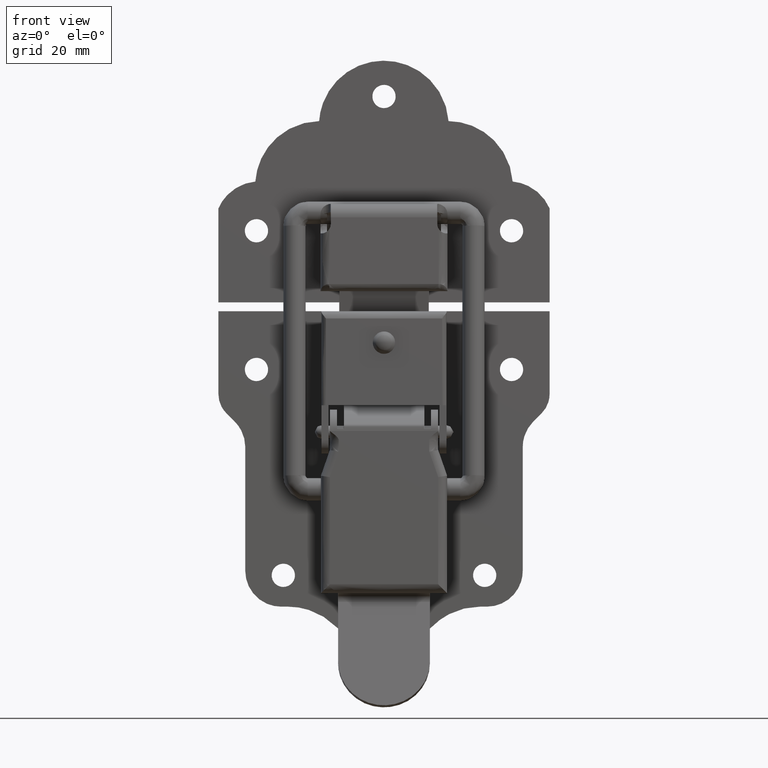
[diagram: clean part render]
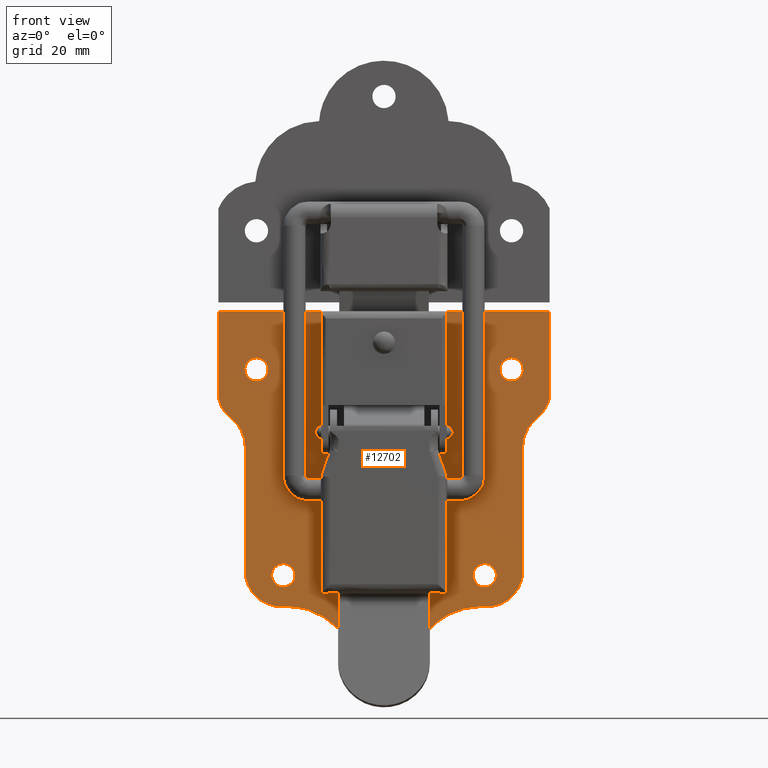
[diagram: same view with one face highlighted and labeled with its STEP entity id]
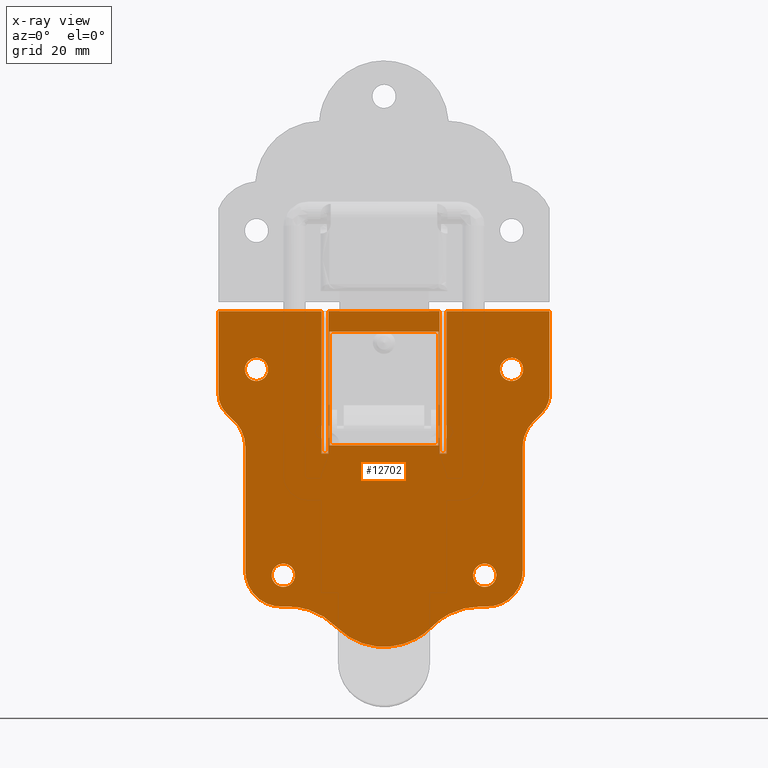
[diagram: x-ray of the same camera — body ghosted, the highlighted face saturated]
A machine part, front view. The second image highlights one B-rep face of the part: STEP entity #12702.
The next image is the same camera in x-ray: the body ghosted, the highlighted face saturated — about 0% of this face is hidden behind the body in this view.
In plain terms, the highlighted face is a freeform B-spline surface patch.
Its self-contained STEP definition (entity closure, byte-faithful):
#8712=CARTESIAN_POINT('',(28.500000000000000,10.900000000000119,16.600000000000001));
#8713=VERTEX_POINT('',#8712);
#8714=CARTESIAN_POINT('',(25.908014932304891,10.900000000000119,14.203993649032530));
#8715=VERTEX_POINT('',#8714);
#8716=CARTESIAN_POINT('',(28.500000000000000,10.900000000000119,16.600000000000001));
#8717=CARTESIAN_POINT('',(26.096584721949341,10.900000000000119,16.600000000000001));
#8718=CARTESIAN_POINT('',(25.908014932304898,10.900000000000123,14.203993649032526));
#8726=(BOUNDED_CURVE()B_SPLINE_CURVE(2,(#8716,#8717,#8718),.UNSPECIFIED.,.F.,.U.)B_SPLINE_CURVE_WITH_KNOTS((3,3),(0.0,0.236331300614231),.UNSPECIFIED.)CURVE()GEOMETRIC_REPRESENTATION_ITEM()RATIONAL_B_SPLINE_CURVE((1.0,0.723120658626913,0.969723356133133))REPRESENTATION_ITEM(''));
#8727=EDGE_CURVE('',#8713,#8715,#8726,.T.);
#8768=CARTESIAN_POINT('',(31.091985067695109,10.900000000000119,13.796006350967470));
#8769=VERTEX_POINT('',#8768);
#8775=CARTESIAN_POINT('',(31.091985067695106,10.900000000000119,13.796006350967474));
#8776=CARTESIAN_POINT('',(31.100000000000001,10.900000000000123,13.897845721639277));
#8777=CARTESIAN_POINT('',(31.100000000000001,10.900000000000119,14.0));
#8778=CARTESIAN_POINT('',(31.100000000000001,10.900000000000119,16.600000000000001));
#8779=CARTESIAN_POINT('',(28.500000000000000,10.900000000000119,16.600000000000001));
#8787=(BOUNDED_CURVE()B_SPLINE_CURVE(2,(#8775,#8776,#8777,#8778,#8779),.UNSPECIFIED.,.F.,.U.)B_SPLINE_CURVE_WITH_KNOTS((3,2,3),(0.736331300614231,0.750000000000000,1.0),.UNSPECIFIED.)CURVE()GEOMETRIC_REPRESENTATION_ITEM()RATIONAL_B_SPLINE_CURVE((0.969723356133133,0.983986122559635,1.0,0.707106781186548,1.0))REPRESENTATION_ITEM(''));
#8788=EDGE_CURVE('',#8769,#8713,#8787,.T.);
#8811=CARTESIAN_POINT('',(28.500000000000000,10.900000000000119,11.400000000000000));
#8812=VERTEX_POINT('',#8811);
#8813=CARTESIAN_POINT('',(25.908014932304901,10.900000000000116,14.203993649032530));
#8814=CARTESIAN_POINT('',(25.899999999999995,10.900000000000121,14.102154278360729));
#8815=CARTESIAN_POINT('',(25.899999999999999,10.900000000000119,14.0));
#8816=CARTESIAN_POINT('',(25.899999999999999,10.900000000000119,11.399999999999999));
#8817=CARTESIAN_POINT('',(28.500000000000000,10.900000000000119,11.400000000000000));
#8825=(BOUNDED_CURVE()B_SPLINE_CURVE(2,(#8813,#8814,#8815,#8816,#8817),.UNSPECIFIED.,.F.,.U.)B_SPLINE_CURVE_WITH_KNOTS((3,2,3),(0.236331300614231,0.250000000000000,0.500000000000000),.UNSPECIFIED.)CURVE()GEOMETRIC_REPRESENTATION_ITEM()RATIONAL_B_SPLINE_CURVE((0.969723356133133,0.983986122559635,1.0,0.707106781186548,1.0))REPRESENTATION_ITEM(''));
#8826=EDGE_CURVE('',#8715,#8812,#8825,.T.);
#8828=CARTESIAN_POINT('',(28.500000000000000,10.900000000000119,11.400000000000000));
#8829=CARTESIAN_POINT('',(30.903415278050673,10.900000000000121,11.400000000000000));
#8830=CARTESIAN_POINT('',(31.091985067695109,10.900000000000116,13.796006350967465));
#8838=(BOUNDED_CURVE()B_SPLINE_CURVE(2,(#8828,#8829,#8830),.UNSPECIFIED.,.F.,.U.)B_SPLINE_CURVE_WITH_KNOTS((3,3),(0.500000000000000,0.736331300614232),.UNSPECIFIED.)CURVE()GEOMETRIC_REPRESENTATION_ITEM()RATIONAL_B_SPLINE_CURVE((1.0,0.723120658626912,0.969723356133135))REPRESENTATION_ITEM(''));
#8839=EDGE_CURVE('',#8812,#8769,#8838,.T.);
#8894=CARTESIAN_POINT('',(22.500000000000000,10.900000000000119,-29.399999999999999));
#8895=VERTEX_POINT('',#8894);
#8896=CARTESIAN_POINT('',(19.908014932304891,10.900000000000119,-31.796006350967470));
#8897=VERTEX_POINT('',#8896);
#8898=CARTESIAN_POINT('',(22.500000000000000,10.900000000000119,-29.399999999999999));
#8899=CARTESIAN_POINT('',(20.096584721949348,10.900000000000121,-29.399999999999999));
#8900=CARTESIAN_POINT('',(19.908014932304894,10.900000000000121,-31.796006350967470));
#8908=(BOUNDED_CURVE()B_SPLINE_CURVE(2,(#8898,#8899,#8900),.UNSPECIFIED.,.F.,.U.)B_SPLINE_CURVE_WITH_KNOTS((3,3),(0.0,0.236331300614231),.UNSPECIFIED.)CURVE()GEOMETRIC_REPRESENTATION_ITEM()RATIONAL_B_SPLINE_CURVE((1.0,0.723120658626913,0.969723356133132))REPRESENTATION_ITEM(''));
#8909=EDGE_CURVE('',#8895,#8897,#8908,.T.);
#8950=CARTESIAN_POINT('',(25.091985067695109,10.900000000000119,-32.203993649032533));
#8951=VERTEX_POINT('',#8950);
#8957=CARTESIAN_POINT('',(25.091985067695106,10.900000000000118,-32.203993649032533));
#8958=CARTESIAN_POINT('',(25.099999999999998,10.900000000000121,-32.102154278360722));
#8959=CARTESIAN_POINT('',(25.100000000000001,10.900000000000119,-32.0));
#8960=CARTESIAN_POINT('',(25.099999999999994,10.900000000000119,-29.399999999999999));
#8961=CARTESIAN_POINT('',(22.500000000000000,10.900000000000119,-29.399999999999999));
#8969=(BOUNDED_CURVE()B_SPLINE_CURVE(2,(#8957,#8958,#8959,#8960,#8961),.UNSPECIFIED.,.F.,.U.)B_SPLINE_CURVE_WITH_KNOTS((3,2,3),(0.736331300614231,0.750000000000000,1.0),.UNSPECIFIED.)CURVE()GEOMETRIC_REPRESENTATION_ITEM()RATIONAL_B_SPLINE_CURVE((0.969723356133133,0.983986122559635,1.0,0.707106781186548,1.0))REPRESENTATION_ITEM(''));
#8970=EDGE_CURVE('',#8951,#8895,#8969,.T.);
#8993=CARTESIAN_POINT('',(22.500000000000000,10.900000000000119,-34.600000000000001));
#8994=VERTEX_POINT('',#8993);
#8995=CARTESIAN_POINT('',(19.908014932304894,10.900000000000121,-31.796006350967470));
#8996=CARTESIAN_POINT('',(19.900000000000002,10.900000000000116,-31.897845721639275));
#8997=CARTESIAN_POINT('',(19.899999999999999,10.900000000000119,-32.0));
#8998=CARTESIAN_POINT('',(19.900000000000006,10.900000000000119,-34.600000000000001));
#8999=CARTESIAN_POINT('',(22.500000000000000,10.900000000000119,-34.600000000000001));
#9007=(BOUNDED_CURVE()B_SPLINE_CURVE(2,(#8995,#8996,#8997,#8998,#8999),.UNSPECIFIED.,.F.,.U.)B_SPLINE_CURVE_WITH_KNOTS((3,2,3),(0.236331300614231,0.250000000000000,0.500000000000000),.UNSPECIFIED.)CURVE()GEOMETRIC_REPRESENTATION_ITEM()RATIONAL_B_SPLINE_CURVE((0.969723356133132,0.983986122559635,1.0,0.707106781186548,1.0))REPRESENTATION_ITEM(''));
#9008=EDGE_CURVE('',#8897,#8994,#9007,.T.);
#9010=CARTESIAN_POINT('',(22.500000000000000,10.900000000000119,-34.600000000000001));
#9011=CARTESIAN_POINT('',(24.903415278050673,10.900000000000121,-34.600000000000009));
#9012=CARTESIAN_POINT('',(25.091985067695109,10.900000000000116,-32.203993649032533));
#9020=(BOUNDED_CURVE()B_SPLINE_CURVE(2,(#9010,#9011,#9012),.UNSPECIFIED.,.F.,.U.)B_SPLINE_CURVE_WITH_KNOTS((3,3),(0.500000000000000,0.736331300614232),.UNSPECIFIED.)CURVE()GEOMETRIC_REPRESENTATION_ITEM()RATIONAL_B_SPLINE_CURVE((1.0,0.723120658626912,0.969723356133135))REPRESENTATION_ITEM(''));
#9021=EDGE_CURVE('',#8994,#8951,#9020,.T.);
#9076=CARTESIAN_POINT('',(-22.500000000000000,10.900000000000119,-29.399999999999999));
#9077=VERTEX_POINT('',#9076);
#9078=CARTESIAN_POINT('',(-25.091985067695099,10.900000000000119,-31.796006350967470));
#9079=VERTEX_POINT('',#9078);
#9080=CARTESIAN_POINT('',(-22.500000000000000,10.900000000000119,-29.399999999999999));
#9081=CARTESIAN_POINT('',(-24.903415278050659,10.900000000000121,-29.399999999999999));
#9082=CARTESIAN_POINT('',(-25.091985067695099,10.900000000000123,-31.796006350967470));
#9090=(BOUNDED_CURVE()B_SPLINE_CURVE(2,(#9080,#9081,#9082),.UNSPECIFIED.,.F.,.U.)B_SPLINE_CURVE_WITH_KNOTS((3,3),(0.0,0.236331300614231),.UNSPECIFIED.)CURVE()GEOMETRIC_REPRESENTATION_ITEM()RATIONAL_B_SPLINE_CURVE((1.0,0.723120658626913,0.969723356133132))REPRESENTATION_ITEM(''));
#9091=EDGE_CURVE('',#9077,#9079,#9090,.T.);
#9132=CARTESIAN_POINT('',(-19.908014932304891,10.900000000000119,-32.203993649032533));
#9133=VERTEX_POINT('',#9132);
#9139=CARTESIAN_POINT('',(-19.908014932304898,10.900000000000116,-32.203993649032533));
#9140=CARTESIAN_POINT('',(-19.900000000000006,10.900000000000121,-32.102154278360722));
#9141=CARTESIAN_POINT('',(-19.899999999999999,10.900000000000119,-32.0));
#9142=CARTESIAN_POINT('',(-19.900000000000006,10.900000000000119,-29.399999999999999));
#9143=CARTESIAN_POINT('',(-22.500000000000000,10.900000000000119,-29.399999999999999));
#9151=(BOUNDED_CURVE()B_SPLINE_CURVE(2,(#9139,#9140,#9141,#9142,#9143),.UNSPECIFIED.,.F.,.U.)B_SPLINE_CURVE_WITH_KNOTS((3,2,3),(0.736331300614231,0.750000000000000,1.0),.UNSPECIFIED.)CURVE()GEOMETRIC_REPRESENTATION_ITEM()RATIONAL_B_SPLINE_CURVE((0.969723356133133,0.983986122559635,1.0,0.707106781186548,1.0))REPRESENTATION_ITEM(''));
#9152=EDGE_CURVE('',#9133,#9077,#9151,.T.);
#9175=CARTESIAN_POINT('',(-22.500000000000000,10.900000000000119,-34.600000000000001));
#9176=VERTEX_POINT('',#9175);
#9177=CARTESIAN_POINT('',(-25.091985067695099,10.900000000000123,-31.796006350967470));
#9178=CARTESIAN_POINT('',(-25.099999999999994,10.900000000000116,-31.897845721639278));
#9179=CARTESIAN_POINT('',(-25.100000000000001,10.900000000000119,-32.0));
#9180=CARTESIAN_POINT('',(-25.099999999999994,10.900000000000119,-34.600000000000001));
#9181=CARTESIAN_POINT('',(-22.500000000000000,10.900000000000119,-34.600000000000001));
#9189=(BOUNDED_CURVE()B_SPLINE_CURVE(2,(#9177,#9178,#9179,#9180,#9181),.UNSPECIFIED.,.F.,.U.)B_SPLINE_CURVE_WITH_KNOTS((3,2,3),(0.236331300614231,0.250000000000000,0.500000000000000),.UNSPECIFIED.)CURVE()GEOMETRIC_REPRESENTATION_ITEM()RATIONAL_B_SPLINE_CURVE((0.969723356133132,0.983986122559634,1.0,0.707106781186548,1.0))REPRESENTATION_ITEM(''));
#9190=EDGE_CURVE('',#9079,#9176,#9189,.T.);
#9192=CARTESIAN_POINT('',(-22.500000000000000,10.900000000000119,-34.600000000000001));
#9193=CARTESIAN_POINT('',(-20.096584721949327,10.900000000000121,-34.600000000000009));
#9194=CARTESIAN_POINT('',(-19.908014932304894,10.900000000000116,-32.203993649032519));
#9202=(BOUNDED_CURVE()B_SPLINE_CURVE(2,(#9192,#9193,#9194),.UNSPECIFIED.,.F.,.U.)B_SPLINE_CURVE_WITH_KNOTS((3,3),(0.500000000000000,0.736331300614232),.UNSPECIFIED.)CURVE()GEOMETRIC_REPRESENTATION_ITEM()RATIONAL_B_SPLINE_CURVE((1.0,0.723120658626912,0.969723356133135))REPRESENTATION_ITEM(''));
#9203=EDGE_CURVE('',#9176,#9133,#9202,.T.);
#9258=CARTESIAN_POINT('',(-28.500000000000000,10.900000000000119,16.600000000000001));
#9259=VERTEX_POINT('',#9258);
#9260=CARTESIAN_POINT('',(-31.091985067695109,10.900000000000119,14.203993649032530));
#9261=VERTEX_POINT('',#9260);
#9262=CARTESIAN_POINT('',(-28.500000000000000,10.900000000000119,16.600000000000001));
#9263=CARTESIAN_POINT('',(-30.903415278050666,10.900000000000119,16.600000000000001));
#9264=CARTESIAN_POINT('',(-31.091985067695106,10.900000000000121,14.203993649032537));
#9272=(BOUNDED_CURVE()B_SPLINE_CURVE(2,(#9262,#9263,#9264),.UNSPECIFIED.,.F.,.U.)B_SPLINE_CURVE_WITH_KNOTS((3,3),(0.0,0.236331300614231),.UNSPECIFIED.)CURVE()GEOMETRIC_REPRESENTATION_ITEM()RATIONAL_B_SPLINE_CURVE((1.0,0.723120658626913,0.969723356133133))REPRESENTATION_ITEM(''));
#9273=EDGE_CURVE('',#9259,#9261,#9272,.T.);
#9314=CARTESIAN_POINT('',(-25.908014932304891,10.900000000000119,13.796006350967470));
#9315=VERTEX_POINT('',#9314);
#9321=CARTESIAN_POINT('',(-25.908014932304894,10.900000000000118,13.796006350967470));
#9322=CARTESIAN_POINT('',(-25.899999999999999,10.900000000000121,13.897845721639275));
#9323=CARTESIAN_POINT('',(-25.899999999999999,10.900000000000119,14.0));
#9324=CARTESIAN_POINT('',(-25.899999999999999,10.900000000000119,16.600000000000001));
#9325=CARTESIAN_POINT('',(-28.500000000000000,10.900000000000119,16.600000000000001));
#9333=(BOUNDED_CURVE()B_SPLINE_CURVE(2,(#9321,#9322,#9323,#9324,#9325),.UNSPECIFIED.,.F.,.U.)B_SPLINE_CURVE_WITH_KNOTS((3,2,3),(0.736331300614231,0.750000000000000,1.0),.UNSPECIFIED.)CURVE()GEOMETRIC_REPRESENTATION_ITEM()RATIONAL_B_SPLINE_CURVE((0.969723356133133,0.983986122559635,1.0,0.707106781186548,1.0))REPRESENTATION_ITEM(''));
#9334=EDGE_CURVE('',#9315,#9259,#9333,.T.);
#9357=CARTESIAN_POINT('',(-28.500000000000000,10.900000000000119,11.400000000000000));
#9358=VERTEX_POINT('',#9357);
#9359=CARTESIAN_POINT('',(-31.091985067695109,10.900000000000123,14.203993649032526));
#9360=CARTESIAN_POINT('',(-31.099999999999998,10.900000000000119,14.102154278360727));
#9361=CARTESIAN_POINT('',(-31.100000000000001,10.900000000000119,14.0));
#9362=CARTESIAN_POINT('',(-31.100000000000001,10.900000000000119,11.399999999999999));
#9363=CARTESIAN_POINT('',(-28.500000000000000,10.900000000000119,11.400000000000000));
#9371=(BOUNDED_CURVE()B_SPLINE_CURVE(2,(#9359,#9360,#9361,#9362,#9363),.UNSPECIFIED.,.F.,.U.)B_SPLINE_CURVE_WITH_KNOTS((3,2,3),(0.236331300614231,0.250000000000000,0.500000000000000),.UNSPECIFIED.)CURVE()GEOMETRIC_REPRESENTATION_ITEM()RATIONAL_B_SPLINE_CURVE((0.969723356133133,0.983986122559635,1.0,0.707106781186548,1.0))REPRESENTATION_ITEM(''));
#9372=EDGE_CURVE('',#9261,#9358,#9371,.T.);
#9374=CARTESIAN_POINT('',(-28.500000000000000,10.900000000000119,11.400000000000000));
#9375=CARTESIAN_POINT('',(-26.096584721949323,10.900000000000121,11.400000000000000));
#9376=CARTESIAN_POINT('',(-25.908014932304894,10.900000000000116,13.796006350967465));
#9384=(BOUNDED_CURVE()B_SPLINE_CURVE(2,(#9374,#9375,#9376),.UNSPECIFIED.,.F.,.U.)B_SPLINE_CURVE_WITH_KNOTS((3,3),(0.500000000000000,0.736331300614232),.UNSPECIFIED.)CURVE()GEOMETRIC_REPRESENTATION_ITEM()RATIONAL_B_SPLINE_CURVE((1.0,0.723120658626912,0.969723356133135))REPRESENTATION_ITEM(''));
#9385=EDGE_CURVE('',#9358,#9315,#9384,.T.);
#11004=CARTESIAN_POINT('',(-12.199999999999999,10.900000000000000,-3.0));
#11005=VERTEX_POINT('',#11004);
#11021=CARTESIAN_POINT('',(12.199999999999999,10.900000000000119,-3.0));
#11022=VERTEX_POINT('',#11021);
#11023=CARTESIAN_POINT('',(12.199999999999999,10.900000000000119,-3.0));
#11024=CARTESIAN_POINT('',(-12.199999999999999,10.900000000000000,-3.0));
#11025=QUASI_UNIFORM_CURVE('',1,(#11023,#11024),.UNSPECIFIED.,.F.,.U.);
#11026=EDGE_CURVE('',#11022,#11005,#11025,.T.);
#11067=CARTESIAN_POINT('',(12.199999999999999,10.900000000000119,22.500000000000000));
#11068=VERTEX_POINT('',#11067);
#11084=CARTESIAN_POINT('',(-12.199999999999999,10.900000000000119,22.500000000000000));
#11085=VERTEX_POINT('',#11084);
#11086=CARTESIAN_POINT('',(-12.199999999999999,10.900000000000119,22.500000000000000));
#11087=CARTESIAN_POINT('',(12.199999999999999,10.900000000000119,22.500000000000000));
#11088=QUASI_UNIFORM_CURVE('',1,(#11086,#11087),.UNSPECIFIED.,.F.,.U.);
#11089=EDGE_CURVE('',#11085,#11068,#11088,.T.);
#11781=CARTESIAN_POINT('',(-12.199999999999999,10.900000000000000,-3.0));
#11782=CARTESIAN_POINT('',(-12.199999999999999,10.900000000000119,22.500000000000000));
#11783=QUASI_UNIFORM_CURVE('',1,(#11781,#11782),.UNSPECIFIED.,.F.,.U.);
#11784=EDGE_CURVE('',#11005,#11085,#11783,.T.);
#11795=CARTESIAN_POINT('',(12.199999999999999,10.900000000000119,22.500000000000000));
#11796=CARTESIAN_POINT('',(12.199999999999999,10.900000000000119,-3.0));
#11797=QUASI_UNIFORM_CURVE('',1,(#11795,#11796),.UNSPECIFIED.,.F.,.U.);
#11798=EDGE_CURVE('',#11068,#11022,#11797,.T.);
#11889=CARTESIAN_POINT('',(37.0,10.900000000000119,8.486000523598680));
#11890=VERTEX_POINT('',#11889);
#11896=CARTESIAN_POINT('',(35.242999896761752,10.900000000000119,4.242999896761639));
#11897=VERTEX_POINT('',#11896);
#11898=CARTESIAN_POINT('',(35.242999896761752,10.900000000000119,4.242999896761639));
#11899=CARTESIAN_POINT('',(37.000508383584389,10.900000000000118,6.000508298033976));
#11900=CARTESIAN_POINT('',(37.0,10.900000000000119,8.486000523598680));
#11908=(BOUNDED_CURVE()B_SPLINE_CURVE(2,(#11898,#11899,#11900),.UNSPECIFIED.,.F.,.U.)CURVE()GEOMETRIC_REPRESENTATION_ITEM()QUASI_UNIFORM_CURVE()RATIONAL_B_SPLINE_CURVE((1.0,0.923840385910287,1.0))REPRESENTATION_ITEM(''));
#11909=EDGE_CURVE('',#11897,#11890,#11908,.T.);
#11932=CARTESIAN_POINT('',(33.280193207320153,10.900000000000119,2.280193207320285));
#11933=VERTEX_POINT('',#11932);
#11934=CARTESIAN_POINT('',(33.280193207320153,10.900000000000119,2.280193207320285));
#11935=CARTESIAN_POINT('',(35.242999896761752,10.900000000000119,4.242999896761639));
#11936=QUASI_UNIFORM_CURVE('',1,(#11934,#11935),.UNSPECIFIED.,.F.,.U.);
#11937=EDGE_CURVE('',#11933,#11897,#11936,.T.);
#11977=CARTESIAN_POINT('',(31.0,10.900000000000119,-3.313000000000100));
#11978=VERTEX_POINT('',#11977);
#11979=CARTESIAN_POINT('',(33.280193207320153,10.900000000000119,2.280193207320285));
#11980=CARTESIAN_POINT('',(31.0,10.900000000000118,-0.051616925536063));
#11981=CARTESIAN_POINT('',(31.0,10.900000000000119,-3.313000000000100));
#11989=(BOUNDED_CURVE()B_SPLINE_CURVE(2,(#11979,#11980,#11981),.UNSPECIFIED.,.F.,.U.)CURVE()GEOMETRIC_REPRESENTATION_ITEM()QUASI_UNIFORM_CURVE()RATIONAL_B_SPLINE_CURVE((1.0,0.926006438715459,1.0))REPRESENTATION_ITEM(''));
#11990=EDGE_CURVE('',#11933,#11978,#11989,.T.);
#12013=CARTESIAN_POINT('',(31.0,10.900000000000119,-30.999999301868300));
#12014=VERTEX_POINT('',#12013);
#12015=CARTESIAN_POINT('',(31.0,10.900000000000119,-30.999999301868300));
#12016=CARTESIAN_POINT('',(31.0,10.900000000000119,-3.313000000000100));
#12017=QUASI_UNIFORM_CURVE('',1,(#12015,#12016),.UNSPECIFIED.,.F.,.U.);
#12018=EDGE_CURVE('',#12014,#11978,#12017,.T.);
#12060=CARTESIAN_POINT('',(23.0,10.900000000000119,-39.0));
#12061=VERTEX_POINT('',#12060);
#12062=CARTESIAN_POINT('',(23.0,10.900000000000119,-39.0));
#12063=CARTESIAN_POINT('',(26.313708703462808,10.900000000000121,-39.0));
#12064=CARTESIAN_POINT('',(28.656854496319198,10.900000000000119,-36.656854002665547));
#12065=CARTESIAN_POINT('',(31.000000289175603,10.900000000000121,-34.313708005331080));
#12066=CARTESIAN_POINT('',(30.999999999999972,10.900000000000119,-30.999999301868300));
#12074=(BOUNDED_CURVE()B_SPLINE_CURVE(2,(#12062,#12063,#12064,#12065,#12066),.UNSPECIFIED.,.F.,.U.)B_SPLINE_CURVE_WITH_KNOTS((3,2,3),(0.0,0.500000000000000,1.0),.UNSPECIFIED.)CURVE()GEOMETRIC_REPRESENTATION_ITEM()RATIONAL_B_SPLINE_CURVE((1.0,0.923879524162429,1.0,0.923879524162429,1.0))REPRESENTATION_ITEM(''));
#12075=EDGE_CURVE('',#12061,#12014,#12074,.T.);
#12098=CARTESIAN_POINT('',(21.425000000000001,10.900000000000119,-39.0));
#12099=VERTEX_POINT('',#12098);
#12100=CARTESIAN_POINT('',(21.425000000000001,10.900000000000119,-39.0));
#12101=CARTESIAN_POINT('',(23.0,10.900000000000119,-39.0));
#12102=QUASI_UNIFORM_CURVE('',1,(#12100,#12101),.UNSPECIFIED.,.F.,.U.);
#12103=EDGE_CURVE('',#12099,#12061,#12102,.T.);
#12143=CARTESIAN_POINT('',(10.712499633402800,10.900000000000119,-43.500000374004003));
#12144=VERTEX_POINT('',#12143);
#12145=CARTESIAN_POINT('',(21.425000000000011,10.900000000000119,-39.000000000000050));
#12146=CARTESIAN_POINT('',(15.123528919594387,10.900000000000118,-38.999849439177794));
#12147=CARTESIAN_POINT('',(10.712499633402800,10.900000000000119,-43.500000374003982));
#12155=(BOUNDED_CURVE()B_SPLINE_CURVE(2,(#12145,#12146,#12147),.UNSPECIFIED.,.F.,.U.)CURVE()GEOMETRIC_REPRESENTATION_ITEM()QUASI_UNIFORM_CURVE()RATIONAL_B_SPLINE_CURVE((1.0,0.921949798527264,1.0))REPRESENTATION_ITEM(''));
#12156=EDGE_CURVE('',#12099,#12144,#12155,.T.);
#12198=CARTESIAN_POINT('',(-10.711999633402939,10.900000000000119,-43.500000374004003));
#12199=VERTEX_POINT('',#12198);
#12200=CARTESIAN_POINT('',(-10.711999633402920,10.900000000000119,-43.500000374003967));
#12201=CARTESIAN_POINT('',(-6.301073591025508,10.900000000000126,-48.000045979049609));
#12202=CARTESIAN_POINT('',(0.000249999999929,10.900000000000119,-48.000045979049602));
#12203=CARTESIAN_POINT('',(6.301573591025363,10.900000000000126,-48.000045979049609));
#12204=CARTESIAN_POINT('',(10.712499633402780,10.900000000000119,-43.500000374003967));
#12212=(BOUNDED_CURVE()B_SPLINE_CURVE(2,(#12200,#12201,#12202,#12203,#12204),.UNSPECIFIED.,.F.,.U.)B_SPLINE_CURVE_WITH_KNOTS((3,2,3),(0.0,0.500000000000000,1.0),.UNSPECIFIED.)CURVE()GEOMETRIC_REPRESENTATION_ITEM()RATIONAL_B_SPLINE_CURVE((1.0,0.921954425446231,1.0,0.921954425446231,1.0))REPRESENTATION_ITEM(''));
#12213=EDGE_CURVE('',#12199,#12144,#12212,.T.);
#12253=CARTESIAN_POINT('',(-21.423999999999999,10.900000000000119,-39.0));
#12254=VERTEX_POINT('',#12253);
#12255=CARTESIAN_POINT('',(-10.711999633402920,10.900000000000119,-43.500000374003989));
#12256=CARTESIAN_POINT('',(-15.122823036629415,10.900000000000121,-39.000059481858884));
#12257=CARTESIAN_POINT('',(-21.423999999999989,10.900000000000119,-39.000000000000021));
#12265=(BOUNDED_CURVE()B_SPLINE_CURVE(2,(#12255,#12256,#12257),.UNSPECIFIED.,.F.,.U.)CURVE()GEOMETRIC_REPRESENTATION_ITEM()QUASI_UNIFORM_CURVE()RATIONAL_B_SPLINE_CURVE((1.0,0.921956253445861,1.0))REPRESENTATION_ITEM(''));
#12266=EDGE_CURVE('',#12199,#12254,#12265,.T.);
#12289=CARTESIAN_POINT('',(-23.0,10.900000000000119,-39.0));
#12290=VERTEX_POINT('',#12289);
#12291=CARTESIAN_POINT('',(-23.0,10.900000000000119,-39.0));
#12292=CARTESIAN_POINT('',(-21.423999999999999,10.900000000000119,-39.0));
#12293=QUASI_UNIFORM_CURVE('',1,(#12291,#12292),.UNSPECIFIED.,.F.,.U.);
#12294=EDGE_CURVE('',#12290,#12254,#12293,.T.);
#12334=CARTESIAN_POINT('',(-31.0,10.900000000000119,-31.0));
#12335=VERTEX_POINT('',#12334);
#12336=CARTESIAN_POINT('',(-31.0,10.900000000000119,-31.0));
#12337=CARTESIAN_POINT('',(-31.000000000000007,10.900000000000119,-39.000000000000007));
#12338=CARTESIAN_POINT('',(-23.0,10.900000000000119,-39.0));
#12346=(BOUNDED_CURVE()B_SPLINE_CURVE(2,(#12336,#12337,#12338),.UNSPECIFIED.,.F.,.U.)CURVE()GEOMETRIC_REPRESENTATION_ITEM()QUASI_UNIFORM_CURVE()RATIONAL_B_SPLINE_CURVE((1.0,0.707106781186548,1.0))REPRESENTATION_ITEM(''));
#12347=EDGE_CURVE('',#12335,#12290,#12346,.T.);
#12370=CARTESIAN_POINT('',(-31.0,10.900000000000119,-3.313000000000100));
#12371=VERTEX_POINT('',#12370);
#12372=CARTESIAN_POINT('',(-31.0,10.900000000000119,-3.313000000000100));
#12373=CARTESIAN_POINT('',(-31.0,10.900000000000119,-31.0));
#12374=QUASI_UNIFORM_CURVE('',1,(#12372,#12373),.UNSPECIFIED.,.F.,.U.);
#12375=EDGE_CURVE('',#12371,#12335,#12374,.T.);
#12415=CARTESIAN_POINT('',(-33.405307190444603,10.900000000000119,2.405340000971270));
#12416=VERTEX_POINT('',#12415);
#12417=CARTESIAN_POINT('',(-31.0,10.900000000000119,-3.313000000000100));
#12418=CARTESIAN_POINT('',(-31.000000000000004,10.900000000000119,0.052042568348085));
#12419=CARTESIAN_POINT('',(-33.405307190444603,10.900000000000119,2.405340000971262));
#12427=(BOUNDED_CURVE()B_SPLINE_CURVE(2,(#12417,#12418,#12419),.UNSPECIFIED.,.F.,.U.)CURVE()GEOMETRIC_REPRESENTATION_ITEM()QUASI_UNIFORM_CURVE()RATIONAL_B_SPLINE_CURVE((1.0,0.921774538917849,1.0))REPRESENTATION_ITEM(''));
#12428=EDGE_CURVE('',#12371,#12416,#12427,.T.);
#12451=CARTESIAN_POINT('',(-35.209040541495952,10.900000000000119,4.210023185277516));
#12452=VERTEX_POINT('',#12451);
#12453=CARTESIAN_POINT('',(-35.209040541495952,10.900000000000119,4.210023185277516));
#12454=CARTESIAN_POINT('',(-33.405307190444603,10.900000000000119,2.405340000971270));
#12455=QUASI_UNIFORM_CURVE('',1,(#12453,#12454),.UNSPECIFIED.,.F.,.U.);
#12456=EDGE_CURVE('',#12452,#12416,#12455,.T.);
#12496=CARTESIAN_POINT('',(-37.0,10.900000000000119,8.485999999999910));
#12497=VERTEX_POINT('',#12496);
#12498=CARTESIAN_POINT('',(-37.0,10.900000000000119,8.485999999999910));
#12499=CARTESIAN_POINT('',(-37.0,10.900000000000121,5.972946909060284));
#12500=CARTESIAN_POINT('',(-35.209040541495952,10.900000000000119,4.210023185277516));
#12508=(BOUNDED_CURVE()B_SPLINE_CURVE(2,(#12498,#12499,#12500),.UNSPECIFIED.,.F.,.U.)CURVE()GEOMETRIC_REPRESENTATION_ITEM()QUASI_UNIFORM_CURVE()RATIONAL_B_SPLINE_CURVE((1.0,0.922362932070666,1.0))REPRESENTATION_ITEM(''));
#12509=EDGE_CURVE('',#12497,#12452,#12508,.T.);
#12532=CARTESIAN_POINT('',(-37.0,10.900000000000119,27.0));
#12533=VERTEX_POINT('',#12532);
#12534=CARTESIAN_POINT('',(-37.0,10.900000000000119,27.0));
#12535=CARTESIAN_POINT('',(-37.0,10.900000000000119,8.485999999999910));
#12536=QUASI_UNIFORM_CURVE('',1,(#12534,#12535),.UNSPECIFIED.,.F.,.U.);
#12537=EDGE_CURVE('',#12533,#12497,#12536,.T.);
#12571=CARTESIAN_POINT('',(37.0,10.900000000000119,27.0));
#12572=VERTEX_POINT('',#12571);
#12578=CARTESIAN_POINT('',(37.0,10.900000000000119,8.486000523598680));
#12579=CARTESIAN_POINT('',(37.0,10.900000000000119,27.0));
#12580=QUASI_UNIFORM_CURVE('',1,(#12578,#12579),.UNSPECIFIED.,.F.,.U.);
#12581=EDGE_CURVE('',#11890,#12572,#12580,.T.);
#12587=CARTESIAN_POINT('',(-40.696299856573653,10.900000000000000,30.746252151288889));
#12588=CARTESIAN_POINT('',(40.696301841408321,10.900000000000000,30.746252151288889));
#12589=CARTESIAN_POINT('',(-40.696299856573653,10.900000000000000,-51.746300141996478));
#12590=CARTESIAN_POINT('',(40.696301841408321,10.900000000000000,-51.746300141996478));
#12591=B_SPLINE_SURFACE_WITH_KNOTS('',1,1,((#12587,#12589),(#12588,#12590)),.UNSPECIFIED.,.F.,.F.,.U.,(2,2),(2,2),(0.0,81.392601697981974),(0.0,82.492552293285371),.UNSPECIFIED.);
#12592=CARTESIAN_POINT('',(12.400000000000000,10.900000000000000,27.0));
#12593=VERTEX_POINT('',#12592);
#12594=CARTESIAN_POINT('',(-12.400000000000000,10.900000000000000,27.0));
#12595=VERTEX_POINT('',#12594);
#12596=CARTESIAN_POINT('',(12.400000000000000,10.900000000000000,27.0));
#12597=CARTESIAN_POINT('',(-12.400000000000000,10.900000000000000,27.0));
#12598=QUASI_UNIFORM_CURVE('',1,(#12596,#12597),.UNSPECIFIED.,.F.,.U.);
#12599=EDGE_CURVE('',#12593,#12595,#12598,.T.);
#12600=ORIENTED_EDGE('',*,*,#12599,.T.);
#12601=CARTESIAN_POINT('',(-12.400000000000000,10.900000000000119,-4.800000000000099));
#12602=VERTEX_POINT('',#12601);
#12603=CARTESIAN_POINT('',(-12.400000000000000,10.900000000000119,-4.800000000000099));
#12604=CARTESIAN_POINT('',(-12.400000000000000,10.900000000000000,27.0));
#12605=QUASI_UNIFORM_CURVE('',1,(#12603,#12604),.UNSPECIFIED.,.F.,.U.);
#12606=EDGE_CURVE('',#12602,#12595,#12605,.T.);
#12607=ORIENTED_EDGE('',*,*,#12606,.F.);
#12608=CARTESIAN_POINT('',(-14.0,10.900000000000119,-4.800000000000099));
#12609=VERTEX_POINT('',#12608);
#12610=CARTESIAN_POINT('',(-14.0,10.900000000000119,-4.800000000000099));
#12611=CARTESIAN_POINT('',(-12.400000000000000,10.900000000000119,-4.800000000000099));
#12612=QUASI_UNIFORM_CURVE('',1,(#12610,#12611),.UNSPECIFIED.,.F.,.U.);
#12613=EDGE_CURVE('',#12609,#12602,#12612,.T.);
#12614=ORIENTED_EDGE('',*,*,#12613,.F.);
#12615=CARTESIAN_POINT('',(-14.0,10.900000000000119,27.0));
#12616=VERTEX_POINT('',#12615);
#12617=CARTESIAN_POINT('',(-14.0,10.900000000000119,27.0));
#12618=CARTESIAN_POINT('',(-14.0,10.900000000000119,-4.800000000000099));
#12619=QUASI_UNIFORM_CURVE('',1,(#12617,#12618),.UNSPECIFIED.,.F.,.U.);
#12620=EDGE_CURVE('',#12616,#12609,#12619,.T.);
#12621=ORIENTED_EDGE('',*,*,#12620,.F.);
#12622=CARTESIAN_POINT('',(-14.0,10.900000000000119,27.0));
#12623=CARTESIAN_POINT('',(-37.0,10.900000000000119,27.0));
#12624=QUASI_UNIFORM_CURVE('',1,(#12622,#12623),.UNSPECIFIED.,.F.,.U.);
#12625=EDGE_CURVE('',#12616,#12533,#12624,.T.);
#12626=ORIENTED_EDGE('',*,*,#12625,.T.);
#12627=ORIENTED_EDGE('',*,*,#12537,.T.);
#12628=ORIENTED_EDGE('',*,*,#12509,.T.);
#12629=ORIENTED_EDGE('',*,*,#12456,.T.);
#12630=ORIENTED_EDGE('',*,*,#12428,.F.);
#12631=ORIENTED_EDGE('',*,*,#12375,.T.);
#12632=ORIENTED_EDGE('',*,*,#12347,.T.);
#12633=ORIENTED_EDGE('',*,*,#12294,.T.);
#12634=ORIENTED_EDGE('',*,*,#12266,.F.);
#12635=ORIENTED_EDGE('',*,*,#12213,.T.);
#12636=ORIENTED_EDGE('',*,*,#12156,.F.);
#12637=ORIENTED_EDGE('',*,*,#12103,.T.);
#12638=ORIENTED_EDGE('',*,*,#12075,.T.);
#12639=ORIENTED_EDGE('',*,*,#12018,.T.);
#12640=ORIENTED_EDGE('',*,*,#11990,.F.);
#12641=ORIENTED_EDGE('',*,*,#11937,.T.);
#12642=ORIENTED_EDGE('',*,*,#11909,.T.);
#12643=ORIENTED_EDGE('',*,*,#12581,.T.);
#12644=CARTESIAN_POINT('',(13.999700000000001,10.900000000000119,27.0));
#12645=VERTEX_POINT('',#12644);
#12646=CARTESIAN_POINT('',(37.0,10.900000000000119,27.0));
#12647=CARTESIAN_POINT('',(13.999700000000001,10.900000000000119,27.0));
#12648=QUASI_UNIFORM_CURVE('',1,(#12646,#12647),.UNSPECIFIED.,.F.,.U.);
#12649=EDGE_CURVE('',#12572,#12645,#12648,.T.);
#12650=ORIENTED_EDGE('',*,*,#12649,.T.);
#12651=CARTESIAN_POINT('',(13.999700000000001,10.900000000000119,-4.800000000000099));
#12652=VERTEX_POINT('',#12651);
#12653=CARTESIAN_POINT('',(13.999700000000001,10.900000000000119,-4.800000000000099));
#12654=CARTESIAN_POINT('',(13.999700000000001,10.900000000000119,27.0));
#12655=QUASI_UNIFORM_CURVE('',1,(#12653,#12654),.UNSPECIFIED.,.F.,.U.);
#12656=EDGE_CURVE('',#12652,#12645,#12655,.T.);
#12657=ORIENTED_EDGE('',*,*,#12656,.F.);
#12658=CARTESIAN_POINT('',(12.400000000000000,10.900000000000000,-4.800000000000099));
#12659=VERTEX_POINT('',#12658);
#12660=CARTESIAN_POINT('',(12.400000000000000,10.900000000000000,-4.800000000000099));
#12661=CARTESIAN_POINT('',(13.999700000000001,10.900000000000119,-4.800000000000099));
#12662=QUASI_UNIFORM_CURVE('',1,(#12660,#12661),.UNSPECIFIED.,.F.,.U.);
#12663=EDGE_CURVE('',#12659,#12652,#12662,.T.);
#12664=ORIENTED_EDGE('',*,*,#12663,.F.);
#12665=CARTESIAN_POINT('',(12.400000000000000,10.900000000000000,27.0));
#12666=CARTESIAN_POINT('',(12.400000000000000,10.900000000000000,-4.800000000000099));
#12667=QUASI_UNIFORM_CURVE('',1,(#12665,#12666),.UNSPECIFIED.,.F.,.U.);
#12668=EDGE_CURVE('',#12593,#12659,#12667,.T.);
#12669=ORIENTED_EDGE('',*,*,#12668,.F.);
#12670=EDGE_LOOP('',(#12600,#12607,#12614,#12621,#12626,#12627,#12628,#12629,#12630,#12631,#12632,#12633,#12634,#12635,#12636,#12637,#12638,#12639,#12640,#12641,#12642,#12643,#12650,#12657,#12664,#12669));
#12671=FACE_OUTER_BOUND('',#12670,.T.);
#12672=ORIENTED_EDGE('',*,*,#11784,.T.);
#12673=ORIENTED_EDGE('',*,*,#11089,.T.);
#12674=ORIENTED_EDGE('',*,*,#11798,.T.);
#12675=ORIENTED_EDGE('',*,*,#11026,.T.);
#12676=EDGE_LOOP('',(#12672,#12673,#12674,#12675));
#12677=FACE_BOUND('',#12676,.T.);
#12678=ORIENTED_EDGE('',*,*,#9385,.F.);
#12679=ORIENTED_EDGE('',*,*,#9372,.F.);
#12680=ORIENTED_EDGE('',*,*,#9273,.F.);
#12681=ORIENTED_EDGE('',*,*,#9334,.F.);
#12682=EDGE_LOOP('',(#12678,#12679,#12680,#12681));
#12683=FACE_BOUND('',#12682,.T.);
#12684=ORIENTED_EDGE('',*,*,#9203,.F.);
#12685=ORIENTED_EDGE('',*,*,#9190,.F.);
#12686=ORIENTED_EDGE('',*,*,#9091,.F.);
#12687=ORIENTED_EDGE('',*,*,#9152,.F.);
#12688=EDGE_LOOP('',(#12684,#12685,#12686,#12687));
#12689=FACE_BOUND('',#12688,.T.);
#12690=ORIENTED_EDGE('',*,*,#9021,.F.);
#12691=ORIENTED_EDGE('',*,*,#9008,.F.);
#12692=ORIENTED_EDGE('',*,*,#8909,.F.);
#12693=ORIENTED_EDGE('',*,*,#8970,.F.);
#12694=EDGE_LOOP('',(#12690,#12691,#12692,#12693));
#12695=FACE_BOUND('',#12694,.T.);
#12696=ORIENTED_EDGE('',*,*,#8839,.F.);
#12697=ORIENTED_EDGE('',*,*,#8826,.F.);
#12698=ORIENTED_EDGE('',*,*,#8727,.F.);
#12699=ORIENTED_EDGE('',*,*,#8788,.F.);
#12700=EDGE_LOOP('',(#12696,#12697,#12698,#12699));
#12701=FACE_BOUND('',#12700,.T.);
#12702=ADVANCED_FACE('',(#12671,#12677,#12683,#12689,#12695,#12701),#12591,.F.);